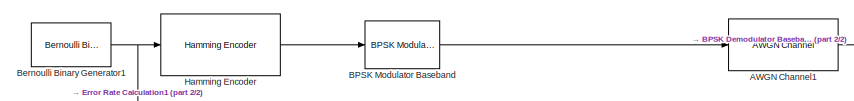
[diagram: root canvas - part 1/2, top left region]
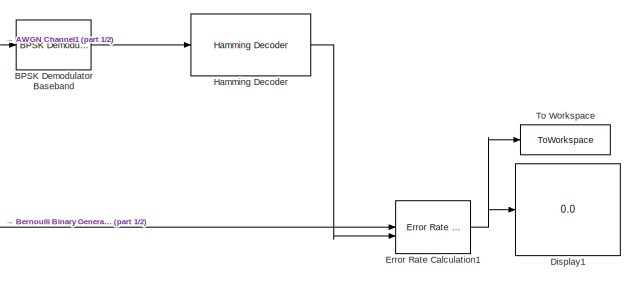
[diagram: root canvas - part 2/2, right side, full height]
MODEL slx_86e8571b2961
KIND model
CONFIG AbsTol = auto
CONFIG EnableMultiTasking = off
CONFIG FixedStep = auto
CONFIG MaxStep = auto
CONFIG MinStep = auto
CONFIG RelTol = 1e-3
CONFIG SampleTimeConstraint = Unconstrained
CONFIG SolverName = VariableStepAuto
CONFIG StartTime = 0.0
CONFIG StopTime = inf
BLOCK [Reference] AWGN Channel1  REF=commchan3/AWGN
Channel
  SourceBlock = commchan3/AWGN\nChannel
  SourceType = AWGN Channel
BLOCK [Reference] BPSK Demodulator Baseband  REF=commdigbbndpm3/BPSK
Demodulator
Baseband
  LibrarySourceBlock = commhdldigbbndpm/BPSK\nDemodulator\nBaseband
  SourceBlock = commdigbbndpm3/BPSK\nDemodulator\nBaseband
  SourceType = BPSK Demodulator Baseband
BLOCK [Reference] BPSK Modulator Baseband  REF=commdigbbndpm3/BPSK
Modulator
Baseband
  LibrarySourceBlock = commhdldigbbndpm/BPSK\nModulator\nBaseband
  SourceBlock = commdigbbndpm3/BPSK\nModulator\nBaseband
  SourceType = BPSK Modulator Baseband
BLOCK [Reference] Bernoulli Binary Generator1  REF=commrandsrc3/Bernoulli Binary
Generator
  SourceBlock = commrandsrc3/Bernoulli Binary\nGenerator
  SourceType = Bernoulli Binary Generator
BLOCK [Display] Display1
  Decimation = 1
  Format = long
BLOCK [Reference] Error Rate Calculation1  REF=commsink2/Error Rate
Calculation
  LibrarySourceBlock = commhdlsink/Error Rate\nCalculation
  SourceBlock = commsink2/Error Rate\nCalculation
  SourceType = Error Rate Calculation
BLOCK [Reference] Hamming Decoder  REF=commblkcod2/Hamming Decoder
  SourceBlock = commblkcod2/Hamming Decoder
  SourceType = Hamming Decoder
BLOCK [Reference] Hamming Encoder  REF=commblkcod2/Hamming Encoder
  SourceBlock = commblkcod2/Hamming Encoder
  SourceType = Hamming Encoder
BLOCK [ToWorkspace] To Workspace
  FixptAsFi = on
  MaxDataPoints = 2
  SampleTime = -1
  Save2DSignal = 2-D array (concatenate along first dimension)
  VariableName = grayBER
LINE AWGN Channel1:1 -> BPSK Demodulator Baseband:1
LINE BPSK Demodulator Baseband:1 -> Hamming Decoder:1
LINE BPSK Modulator Baseband:1 -> AWGN Channel1:1
NET Bernoulli Binary Generator1:1 -> Error Rate Calculation1:1, Hamming Encoder:1
NET Error Rate Calculation1:1 -> Display1:1, To Workspace:1
LINE Hamming Decoder:1 -> Error Rate Calculation1:2
LINE Hamming Encoder:1 -> BPSK Modulator Baseband:1
note: NET lines group one-source signal fan-out (src -> all destinations, sorted); 1:1 wires keep LINE
